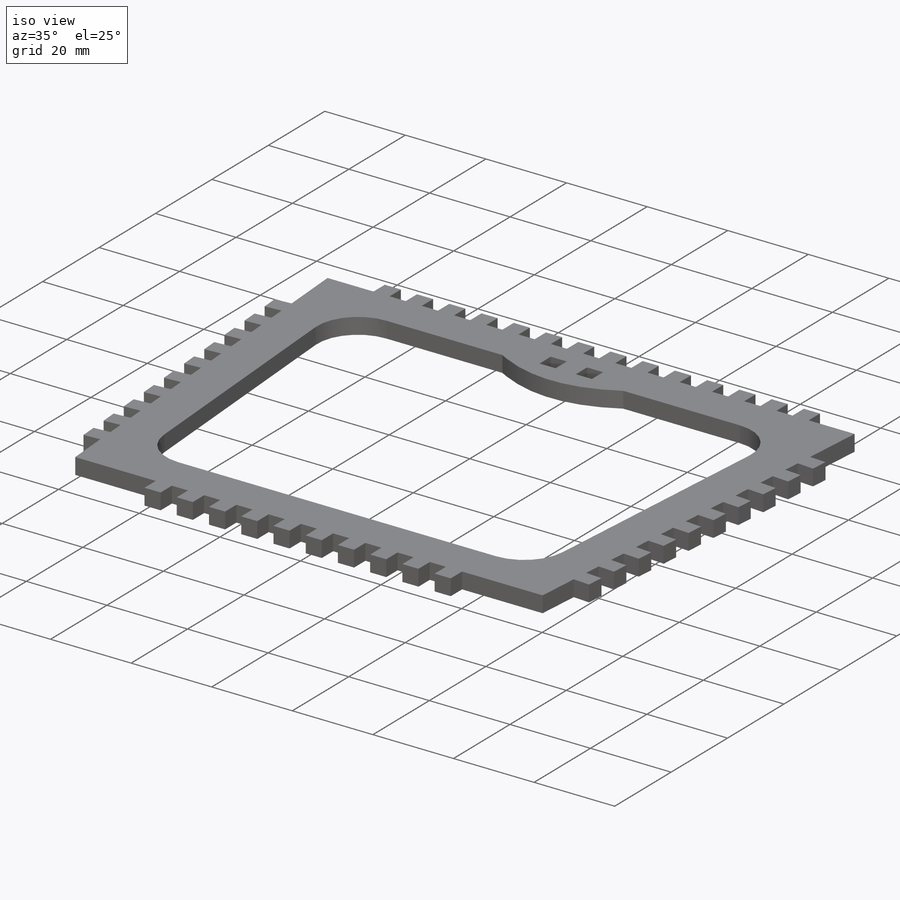
[diagram: iso view]
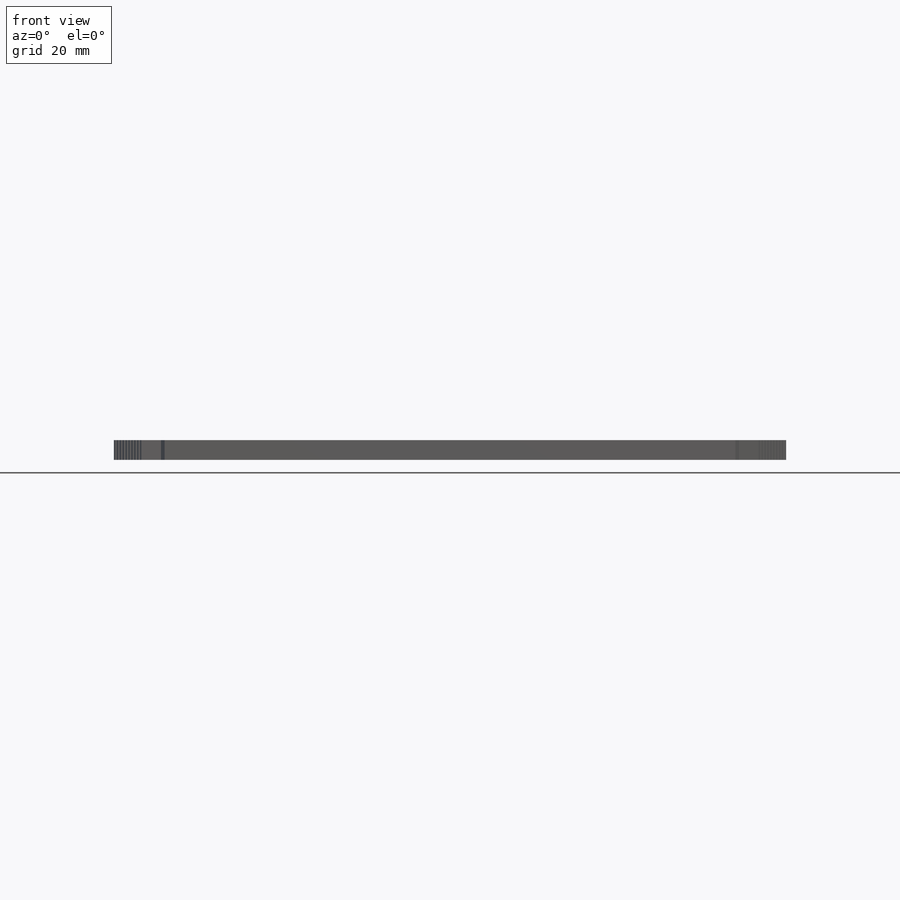
[diagram: front view]
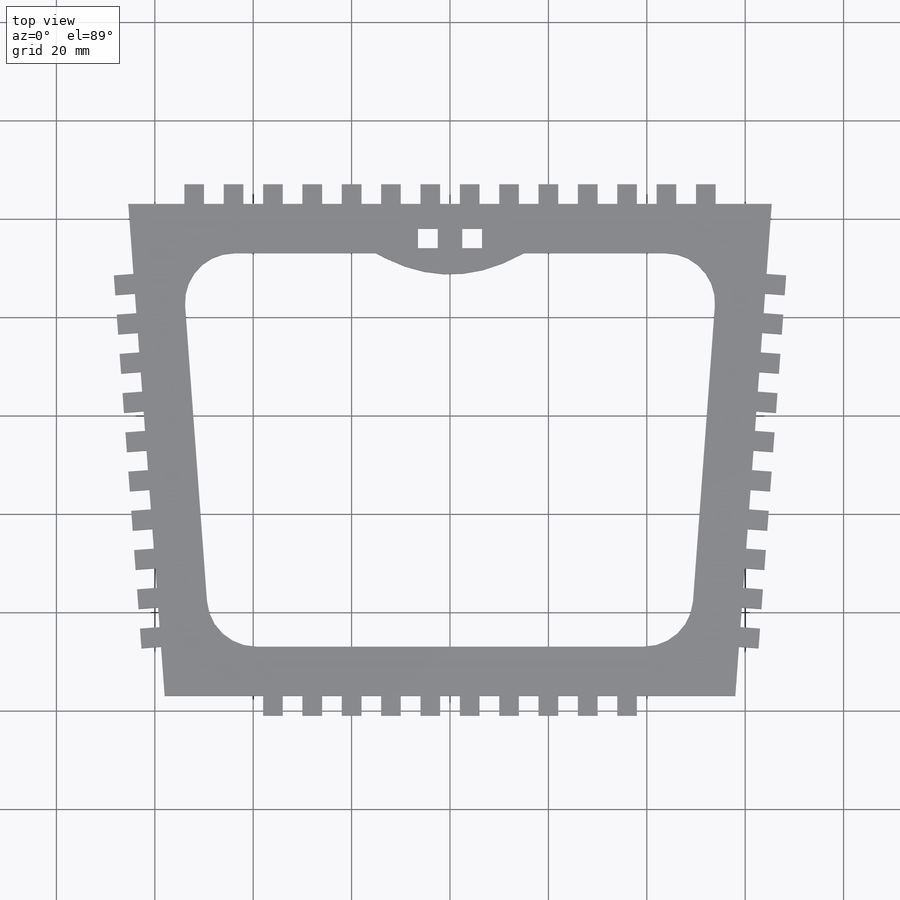
[diagram: top view]
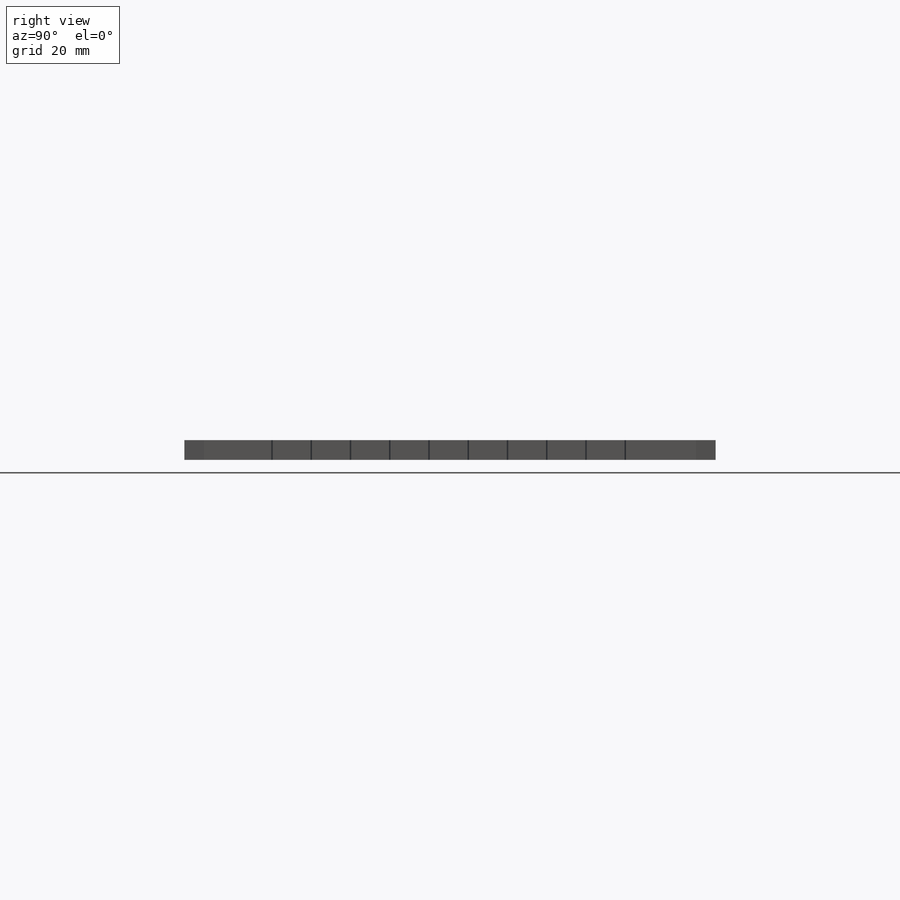
[diagram: right view]
SOLIDWORKS PART (.sldprt)
format: sldprt  version: not decoded by parser v0  size: 648,192 bytes
history: native  units: mm
features: sketch x4, extrude x3, material x1, cut_extrude x1 (+13 scaffold rows collapsed)
feature tree (22):
  scaffold x13  (default folders/planes/origin — collapsed)
  material  "Cedar"
  sketch  "Sketch1"  dims[c1.D1=100.0mm c1.D2=144.0mm c1.D3=128.0mm c1.D4=4.0mm c1.D5=~4.963505mm c2.D5=90.0deg c3.D5=4.0mm c3.D6=2.0mm c3.D8=2.0mm c3.D4=4.0mm c4.D5=2.0mm c4.D6=4.0mm c4.D7=2.0mm c4.D10=4.0mm c4.D11=4.0mm c4.D12=4.0mm c4.D13=4.0mm c5.D10=4.0mm c5.D11=4.0mm c5.D2=65.4mm c5.D14=65.4mm c5.D3=58.0mm c5.D15=58.0mm c6.D11=11.5mm]
  extrude  "Boss-Extrude1"  Depth=4mm
  sketch  "Sketch2"  dims[D1=4.0mm D2=2.0mm D3=4.0mm D4=2.0mm D5=4.0mm D6=4.0mm]
  extrude  "Boss-Extrude2"  Depth=4mm
  sketch  "Sketch4"  dims[c1.D1=3.0mm c1.D5=10.0mm c1.D6=10.0mm c1.D8=10.0mm c1.D10=10.0mm c1.D9=35.0mm c2.D1=10.0mm c2.D2=10.0mm c2.D3=10.0mm c2.D4=10.0mm c3.D3=7.0mm c3.D7=10.0mm c3.D8=10.0mm c3.D9=7.0mm c3.D2=6.0mm c3.D11=10.0mm c3.D12=7.0mm c3.D13=7.0mm c3.D14=10.0mm c3.D15=6.0mm c3.D16=10.0mm c3.D17=4.0mm c3.D18=4.0mm c3.D19=2.5mm c3.D20=4.0mm c3.D21=4.0mm c3.D22=2.5mm c3.D23=5.0mm c4.D3=10.0mm c4.D6=10.0mm c4.D7=15.0mm c4.D8=15.0mm c5.D7=15.0mm c5.D8=15.0mm]
  cut_extrude  "Cut-Extrude1"  Depth=10mm
  sketch  "Sketch5"  dims[c1.D1=4.0mm c1.D2=4.0mm c1.D3=2.0mm c1.D4=123.4mm c2.D4=~94.232174deg c2.D5=10.0mm c2.D6=~34.136713mm c2.D2=4.0mm c2.D1=10.0]
  extrude  "Boss-Extrude3"  Depth=4mm
decode coverage: 8 of 8 modeling features carry decoded parameters
note: ~ marks probable driven/reference dimensions
note: suppression state not decoded; provenance and decode notes live in map.json
